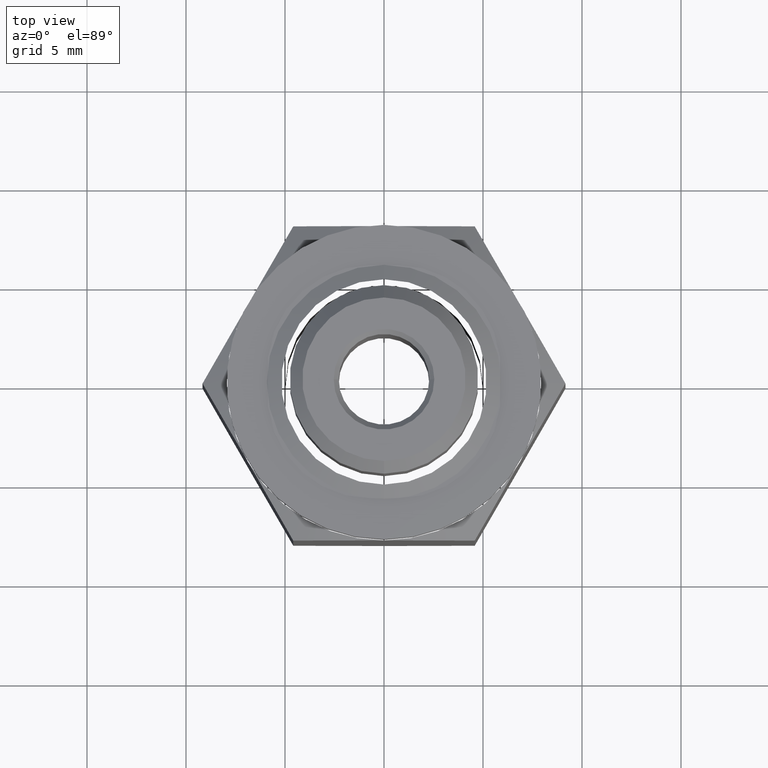
[diagram: clean part render]
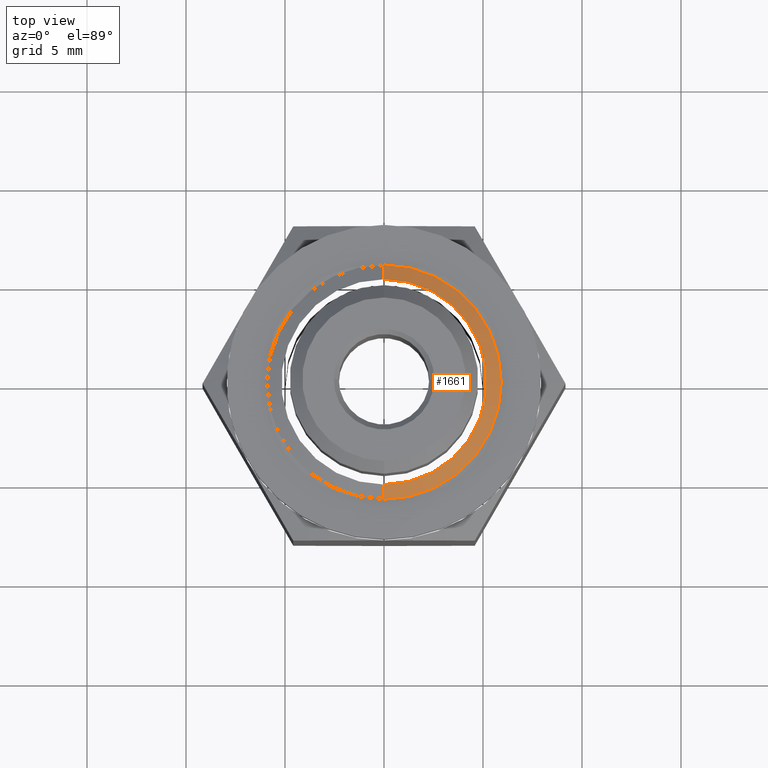
[diagram: same view with one face highlighted and labeled with its STEP entity id]
A machine part, top view. The second image highlights one B-rep face of the part: STEP entity #1661.
In plain terms, the highlighted conical surface has half-angle 62.969 deg.
Its self-contained STEP definition (entity closure, byte-faithful):
#1610=CARTESIAN_POINT('',(0.E0,0.E0,7.807401574803E-1));
#1611=DIRECTION('',(0.E0,0.E0,-1.E0));
#1612=DIRECTION('',(0.E0,1.E0,0.E0));
#1613=AXIS2_PLACEMENT_3D('',#1610,#1611,#1612);
#1615=CARTESIAN_POINT('',(0.E0,0.E0,7.955039370079E-1));
#1616=DIRECTION('',(0.E0,0.E0,1.E0));
#1617=DIRECTION('',(0.E0,-1.E0,0.E0));
#1618=AXIS2_PLACEMENT_3D('',#1615,#1616,#1617);
#1620=DIRECTION('',(0.E0,8.907618697082E-1,-4.544703416879E-1));
#1621=VECTOR('',#1620,3.248568316411E-2);
#1622=CARTESIAN_POINT('',(0.E0,2.041338582677E-1,7.955039370079E-1));
#1623=LINE('',#1622,#1621);
#1629=DIRECTION('',(0.E0,-8.907618697082E-1,-4.544703416879E-1));
#1630=VECTOR('',#1629,3.248568316411E-2);
#1631=CARTESIAN_POINT('',(0.E0,-2.041338582677E-1,7.955039370079E-1));
#1632=LINE('',#1631,#1630);
#1638=CARTESIAN_POINT('',(0.E0,2.041338582677E-1,7.955039370079E-1));
#1639=CARTESIAN_POINT('',(0.E0,2.330708661417E-1,7.807401574803E-1));
#1640=VERTEX_POINT('',#1638);
#1641=VERTEX_POINT('',#1639);
#1642=CARTESIAN_POINT('',(0.E0,-2.041338582677E-1,7.955039370079E-1));
#1643=CARTESIAN_POINT('',(0.E0,-2.330708661417E-1,7.807401574803E-1));
#1644=VERTEX_POINT('',#1642);
#1645=VERTEX_POINT('',#1643);
#1646=CARTESIAN_POINT('',(0.E0,0.E0,7.881220472441E-1));
#1647=DIRECTION('',(0.E0,0.E0,-1.E0));
#1648=DIRECTION('',(0.E0,1.E0,0.E0));
#1649=AXIS2_PLACEMENT_3D('',#1646,#1647,#1648);
#1650=CONICAL_SURFACE('',#1649,2.186023622047E-1,6.296913974016E1);
#1652=ORIENTED_EDGE('',*,*,#1651,.T.);
#1654=ORIENTED_EDGE('',*,*,#1653,.T.);
#1656=ORIENTED_EDGE('',*,*,#1655,.F.);
#1658=ORIENTED_EDGE('',*,*,#1657,.T.);
#1659=EDGE_LOOP('',(#1652,#1654,#1656,#1658));
#1660=FACE_OUTER_BOUND('',#1659,.F.);
#1614=CIRCLE('',#1613,2.330708661417E-1);
#1619=CIRCLE('',#1618,2.041338582677E-1);
#1651=EDGE_CURVE('',#1640,#1641,#1623,.T.);
#1653=EDGE_CURVE('',#1641,#1645,#1614,.T.);
#1655=EDGE_CURVE('',#1644,#1645,#1632,.T.);
#1657=EDGE_CURVE('',#1644,#1640,#1619,.T.);
#1661=ADVANCED_FACE('',(#1660),#1650,.T.);